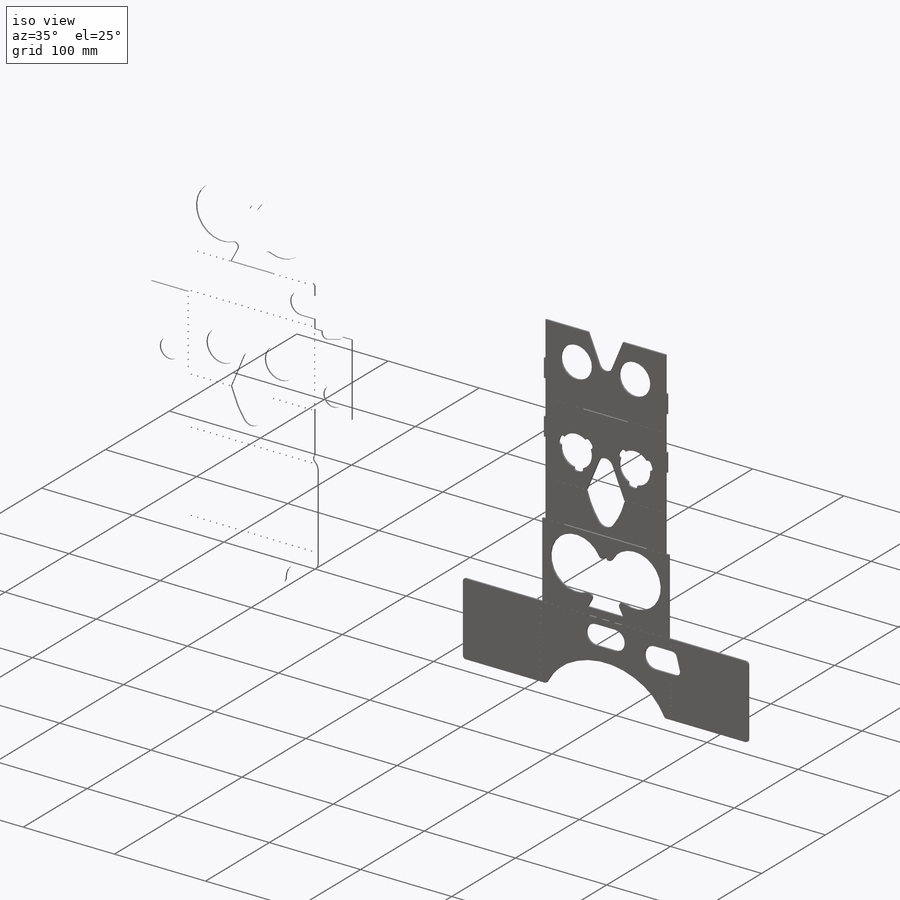
[diagram: iso view]
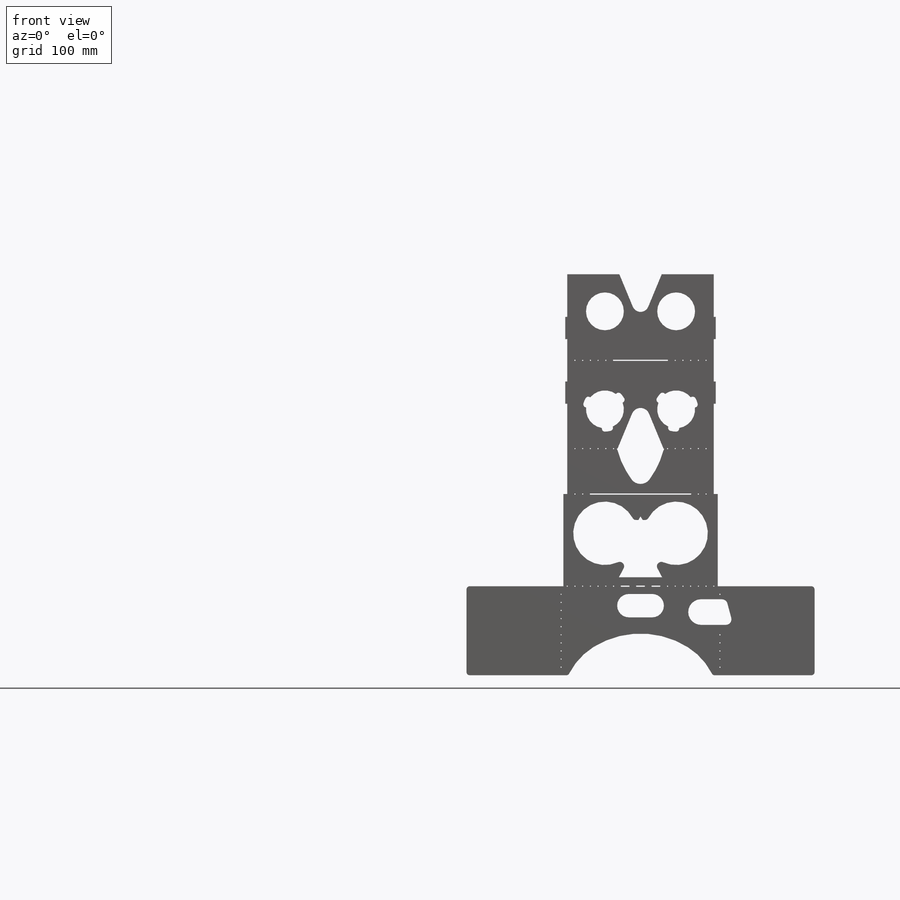
[diagram: front view]
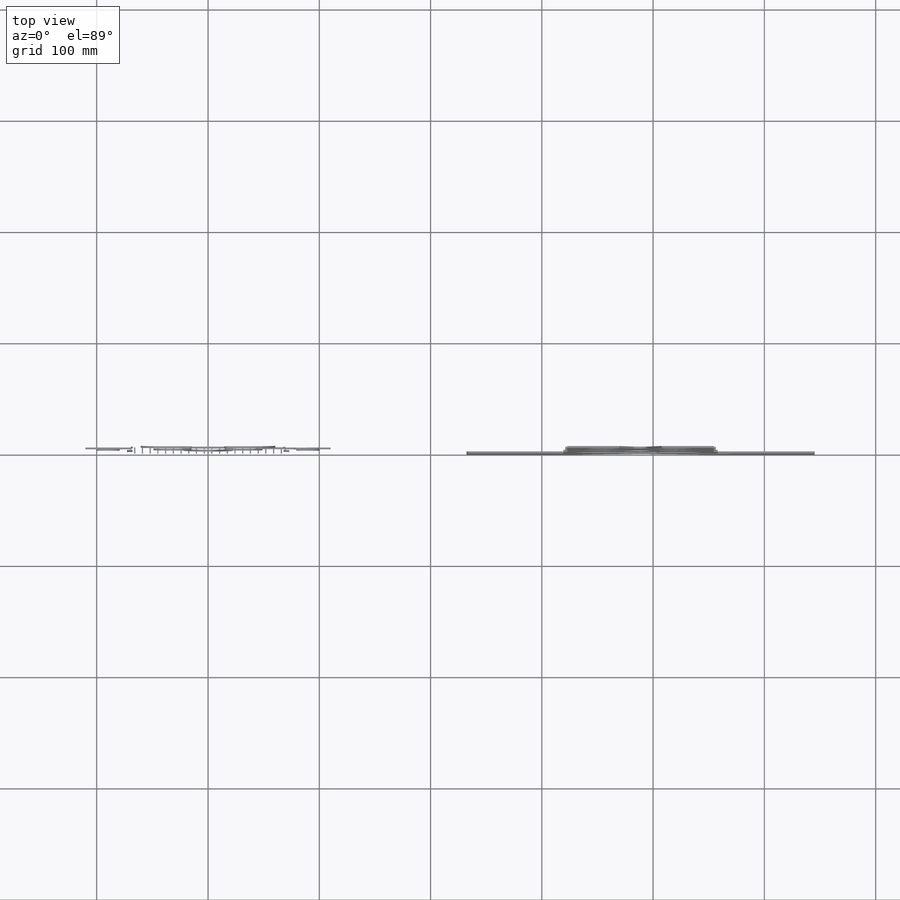
[diagram: top view]
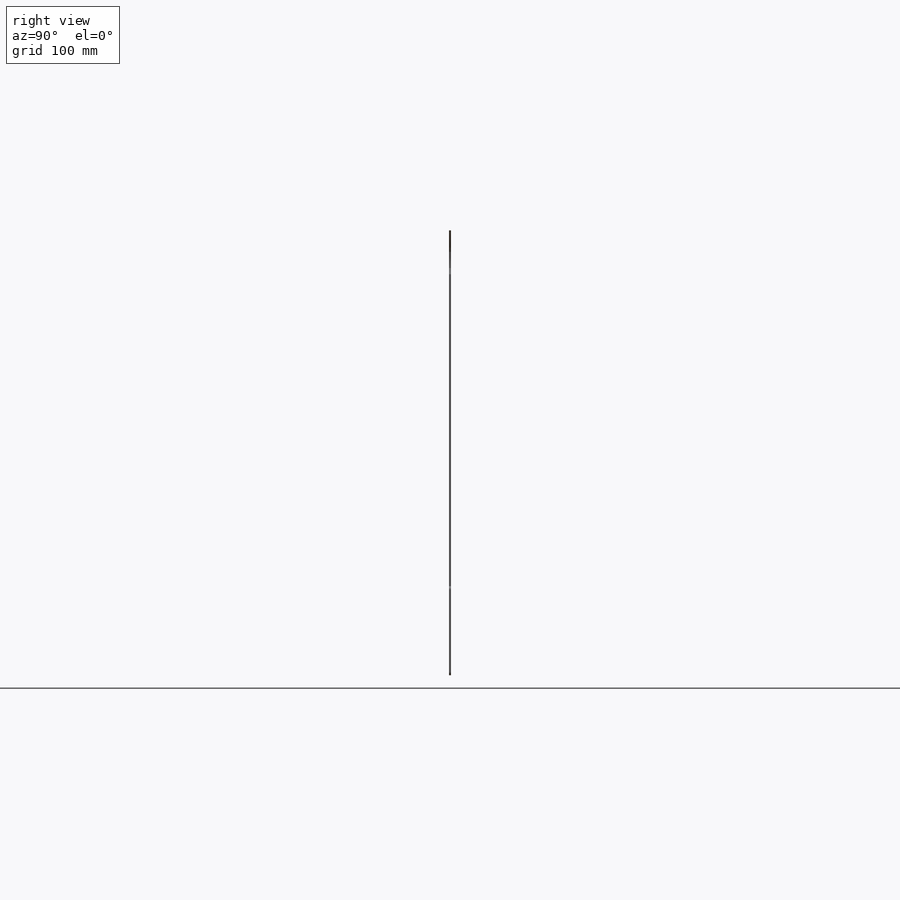
[diagram: right view]
SOLIDWORKS PART (.sldprt)
format: sldprt  version: not decoded by parser v0  size: 2,960,384 bytes
history: native  units: mm
features: sketch x45, extrude x5, cut_extrude x4, fillet x4, material x1, boolean_combine x1 (+19 scaffold rows collapsed; 6 parser-record rows omitted)
feature tree (85):
  scaffold x19  (default folders/planes/origin — collapsed)
  material  "Material <not specified>"
  parser-record x6  (decoder bookkeeping rows leaked as tree rows — omitted from the tree; the rows remain in map.json)
  sketch  "Eyes and Nose"  dims[c1.D1=34.0mm c1.D4=36.0mm c1.D8=~7.507154mm c1.D9=~9.007154mm c1.D10=~8.257154mm c2.D4=38.0mm c2.D2=34.0mm c3.D4=~9.007154mm c3.D2=62.0mm c3.D3=~28.167203mm c4.D3=45.0deg c4.D5=5.08mm c4.D6=6.08mm c5.D5=~6.238513mm c5.D2=64.0mm c5.D4=2.0mm c5.D6=0.75mm c5.D7=0.75mm]
  sketch  "Lens tabs"  dims[c1.D1=20.0mm c1.D3=34.0mm c1.D2=~3.908666mm c2.D2=15.0deg c2.D4=~9.810564mm c2.D3=3.0]
  sketch  "Screen Holes"  dims[D1=57.0mm]
  sketch  "4" phone"  dims[c1.D1=51.7mm c1.D2=58.57mm c1.D3=90.71mm c1.D4=123.83mm c1.D5=16.72mm c2.D5=16.72mm c2.D6=6.0mm]
  sketch  "6" phone"  dims[c1.D1=159.26mm c1.D2=82.98mm c1.D3=151.384mm c1.D4=3.0mm c1.D5=11.0mm c2.D4=4.5mm c2.D6=0.59mm c2.D7=52.0mm c2.D8=8.3mm]
  sketch  "Outer Face Outline"  dims[c1.D3=57.0mm c1.D5=57.0mm c1.D1=82.0mm c1.D2=30.0mm c2.D3=134.0mm c2.D1=0.5mm c2.D2=3.0mm c3.D1=0.5mm c3.D2=3.0mm c3.D3=8.85mm c3.D4=1.75mm c3.D5=8.5mm c3.D6=37.035mm]
  sketch  "Outer Lens Holder"  dims[D1=37.035mm]
  sketch  "Outer Bottom Side"  dims[c1.D3=10.0mm c1.D1=1.75mm c1.D2=30.0mm c1.D4=~12.513589mm c2.D4=75.0deg c2.D5=42.5692mm c2.D6=10.0mm]
  sketch  "Phone Flap"  dims[c1.D6=~3.976521mm c1.D1=~99.508837mm c1.D2=82.82mm c2.D1=3.0mm c2.D2=4.75mm c2.D3=40.0mm c3.D1=85.82mm c3.D2=87.57mm c3.D4=3.5mm c3.D5=1.75mm c3.D6=1.5mm c3.outside width=145.7mm]
  sketch  "Fixed Roof"  dims[D1=40.8192mm]
  sketch  "Inner and Middle Screen Apertures - outer outlines"  dims[D1=1.75mm D2=1.75mm D3=1.75mm D4=79.82mm D5=82.82mm D6=78.07mm D7=1.75mm]
  sketch  "Inner and Middle Screen Apertures"  dims[c1.D3=57.0mm c1.D5=4.0mm c1.D6=3.0mm c1.D1=45.785mm c1.D2=45.785mm c2.D3=5.535mm c2.D4=2.0mm c2.D7=12.0mm c2.D8=16.63mm c2.D9=10.0mm c2.D10=~22.366529mm c3.D10=28.0deg c3.D11=3.0mm c3.D12=~6.809743mm]
  sketch  "Lever"  dims[D1=1.0mm D2=32.3192mm D3=30.5692mm]
  sketch  "Hammer"  dims[c1.D1=1.75mm c1.D2=1.75mm c1.D3=~6.809743mm c2.D3=242.0deg c2.D4=~31.742615mm c3.D4=242.0deg c3.D5=~16.604104mm c4.D5=15.0deg c4.D6=14.0mm c4.D7=14.0mm c4.D8=~2.069199mm c4.D9=~2.119632mm c4.D10=30.5692mm c4.D11=~2.543526mm c5.D9=~2.119632mm]
  sketch  "Side box-closure Flaps"  dims[c1.D8=21.0mm c1.D9=20.0mm c1.D1=0.2mm c1.D2=1.75mm c1.D3=1.75mm c1.D4=40.8192mm c1.D5=40.8192mm c1.D6=1.75mm c1.D7=39.0692mm c2.D9=7.0mm c2.D10=1.75mm c2.D11=37.035mm c2.D12=44.035mm c2.D13=44.035mm c2.D14=32.535mm c2.D15=33.535mm c2.D16=37.3192mm c2.D17=44.035mm]
  sketch  "Middle Lens Holder starter sketch"  dims[D5=250.0mm D1=0.0mm D2=0.0mm D3=0.0mm D4=2.0]
  sketch  "Middle Lens Holder"  dims[D6=1.75mm D7=3.5mm D8=1.75mm D1=0.0mm D2=0.0mm D3=0.0mm D4=0.0mm D5=0.0mm]
  sketch  "Inner Bottom Side"  dims[D4=~61.280231mm D2=1.75mm D3=40.8192mm D1=2.0]
  sketch  "Outer Screen Aperture"  dims[D1=3.5mm D2=1.75mm D4=8.0mm D3=2.0]
  sketch  "Visor"  dims[c1.D4=80.0mm c1.D5=60.0mm c1.D7=10.5mm c1.D8=21.0mm c1.D1=42.5692mm c1.D2=82.82mm c1.D3=80.07mm c1.D6=~34.258842mm c2.D6=32.0deg c2.D7=21.0mm]
  sketch  "Blinders"  dims[D1=82.82mm D2=85.07mm D3=2.0mm]
  sketch  "Inner Lens Holder"  dims[D1=1.95mm]
  sketch  "Button Openings on Tops"  dims[c1.D2=10.0mm c1.D3=10.0mm c1.D8=5.0mm c1.D1=10.0mm c2.D3=25.0mm c2.D5=1.75mm c2.D6=1.75mm c2.D7=~15.73995mm c3.D7=15.0deg c3.D1=10.0mm c3.D10=1.75mm c3.D11=11.75mm c3.D13=1.75mm c3.D14=3.5mm c3.D15=10.0mm c3.D16=21.75mm c4.D10=1.75mm c4.D4=1.5mm c4.D17=5.0mm c4.D9=2.0 c4.D12=2.0 c4.D14=2.0]
  sketch  "Button Opening on inner Side Flaps"  dims[c1.D1=90.0deg c1.D2=1.75mm c1.D3=10.0mm c1.D4=8.5mm c2.D1=10.0mm c2.D2=1.75deg c2.D4=1.75mm c2.D5=10.0mm c2.D6=90.0deg c3.D6=~2.447928mm c3.D4=1.75mm c3.D2=50.0mm c4.D6=8.25mm c4.D7=1.75mm c4.D4=2.0 c4.D3=2.0]
  sketch  "Button Opening on outer Side Flap"  dims[c1.D1=90.0deg c1.D2=1.75mm c1.D3=10.0mm c1.D4=10.0mm c2.D1=2.0]
  sketch  "Button"  dims[c1.D8=5.0mm c1.D9=5.0mm c1.D1=11.5mm c1.D3=8.75mm c1.D5=3.5mm c1.D6=1.75mm c1.D7=0.2mm c2.D9=5.0mm c2.D2=2.0 c2.D4=2.0]
  sketch  "Base sketch for conductive sticker"  dims[c1.D3=1.75mm c1.D4=1.0mm c1.D5=~45.806509mm c2.D5=~179.992296deg c3.D5=~45.809855mm c3.D2=1.0mm c4.D5=1.0mm c4.D6=2.0mm c4.D7=28.655mm c4.D8=~15.236134mm c4.D9=~6.809743mm c4.D10=~19.255672mm c5.D10=62.0deg c6.D10=24.5mm c6.D11=~16.635267mm c6.D12=~14.522302mm c6.D8=~17.70879mm c6.D9=~10.94621mm c7.D10=~32.453795mm c8.D10=~32.248922deg c8.D11=~12.329436mm c9.D11=~34.349103deg c9.D12=10.0mm c9.D13=~30.363252mm c9.D14=120.0mm c10.D12=~42.983255mm c11.D12=~211.600484deg c12.D12=4.0mm c12.D14=~113.300799mm c12.D2=~29.582699mm c13.D2=62.0deg c13.D5=~0.927699mm c14.D5=62.0deg c14.D11=1.0mm c14.D15=1.0mm c15.D15=62.0deg c15.D16=15.0mm c15.D13=1.0mm c15.D11=1.0mm c15.D14=130.0mm c16.D11=1.0mm c16.D17=~3.24192mm c17.D17=62.0deg c17.D18=4.0mm c17.D14=130.0mm c17.D1=1.0mm c17.D2=1.0mm c17.D13=2.0]
  sketch  "Locking Features"  dims[D1=1.75mm D2=20.0mm D3=3.5mm D4=15.0mm D5=15.0mm]
  sketch  "Screen Alignment features"  dims[c1.D2=8.0mm c1.D3=7.0mm c1.D4=6.0mm c1.D1=8.0mm c2.D3=0.25mm c2.D1=3.0mm c2.D2=2.5mm c3.D1=4.0mm c3.D2=~4.798408mm c4.D2=30.0deg c4.D4=2.0]
  sketch  "Sketch74"  dims[c1.D1=6.0mm c1.D6=8.0mm c1.D7=7.0mm c1.D9=6.0mm c1.D2=6.0mm c1.D4=21.0mm c2.D2=22.0mm c2.D3=7.0mm c2.D4=22.0mm c2.D5=7.0mm c2.D8=7.0mm c3.D3=20.0mm c3.D5=1.0mm c3.D7=1.75mm c4.D7=45.0deg c4.D8=1.75mm c5.D8=45.0deg c5.D3=0.0mm c5.D4=0.0mm c5.D6=0.0mm]
  extrude  "Main Bodies"  Depth=1.75mm
  sketch  "Sketch80"
  extrude  "Conductive Sticker"  Depth=0.15mm
  sketch  "Foam Pillow profiles"  dims[c1.D5=0.4mm c1.D1=40.0mm c1.D2=1.0mm c1.D3=~10.94621mm c2.D3=15.0deg c2.D4=~3.783028mm c2.D2=0.85mm c2.D6=0.15mm]
  sketch  "Foam Pillow footprint"  dims[D1=50.0mm D2=20.0mm]
  sketch  "Sketch84"
  extrude  "Foam"  [1 undecoded]
  sketch  "Sketch86"  dims[D6=0.15mm D3=0.001mm D4=0.75mm D5=0.5mm D1=0.0mm D2=0.0mm]
  extrude  "Conductive Wrapper"  Depth=13mm
  sketch  "Sketch88"  dims[D1=~6.874195mm]
  cut_extrude  "Die-cut the pillow"  Depth=10mm
  boolean_combine  "Combine1"
  sketch  "Sketch89"  dims[D1=21.0mm D2=21.0mm]
  extrude  "Die-cut velcro"  [1 undecoded]
  sketch  "Crease lines on Chassis body, Blinders body"  dims[D1=85.07mm D2=85.07mm]
  sketch  "Sketch75"  dims[c1.D1=1.0mm c1.D26=1.0mm c1.D14=1.0mm c1.D15=1.0mm c1.D19=1.0mm c2.D26=5.0mm c2.D14=5.0mm c2.D15=5.0mm c2.D19=5.0mm c2.D28=5.25mm c2.D2=8.0 c2.D3=4.0 c2.D4=4.0 c2.D5=8.0 c2.D6=20.0 c2.D7=2.0 c2.D8=2.0 c2.D9=2.0 c2.D10=2.0 c2.D11=2.0 c2.D12=2.0 c2.D13=2.0 c2.D16=4.0 c2.D17=2.0 c2.D20=20.0 c2.D21=2.0 c2.D22=2.0 c2.D23=2.0 c2.D24=12.0 c2.D25=2.0 c2.D27=12.0 c2.D18=12.0]
  cut_extrude  "Holes for laser-cutting"  Depth=10mm
  sketch  "Sketch76"
  cut_extrude  "Slots for laser-cutting"  [1 undecoded]
  sketch  "Sketch77"
  fillet  "Fillet1"  Radius=1mm
  fillet  "Smoothing out the nose opening"  Radius=50mm
  fillet  "Corners of Blinders"  Radius=3mm
  fillet  "Corners around locking tabs"  Radius=0.79375mm
  sketch  "Splitter Sketch"
  sketch  "Sketch78"  dims[c1.D2=28.5mm c1.D1=5.0mm c2.D2=5.035mm]
  cut_extrude  "Shave material from bottom of Middle Screen Aperture"  Depth=10mm
  sketch  "Bend lines on Button assembly"  dims[D1=3.5mm]
  sketch  "Cut lines on Blinders body"  dims[D1=7.0mm D2=7.0mm D3=7.0mm D4=7.0mm D5=7.0mm D6=7.0mm D7=7.0mm D8=7.0mm D9=14.0mm D10=14.0mm D11=50.0mm D12=50.0mm D13=14.0mm D14=14.0mm D15=35.0mm D16=35.0mm]
decode coverage: 50 of 59 modeling features carry decoded parameters
note: ~ marks probable driven/reference dimensions
note: 3 parameter values undecoded
summary: no parameter record found for 3 features
note: suppression state not decoded; provenance and decode notes live in map.json
